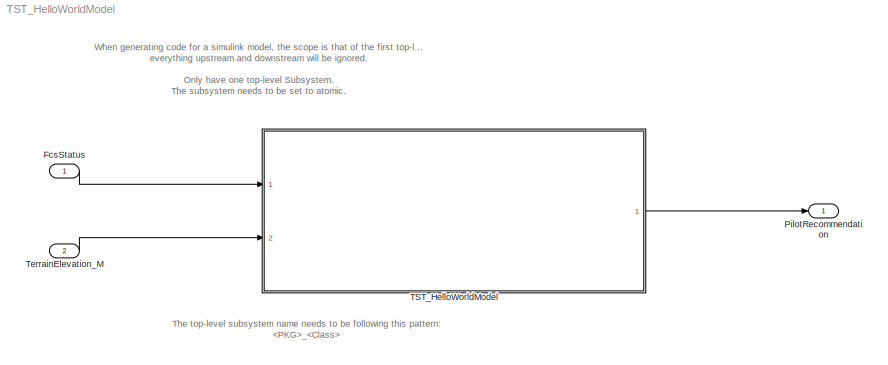
MODEL TST_HelloWorldModel
KIND model
BLOCK [Inport] FcsStatus
  IconDisplay = Port number
  OutDataTypeStr = Bus: FCS_FlightControlSystem_Status
  SID = 23
BLOCK [Outport] PilotRecommendation
  IconDisplay = Port number
  OutDataTypeStr = Enum: GBL_Definitions_EjectionCmd
  PortDimensions = 1
  SID = 25
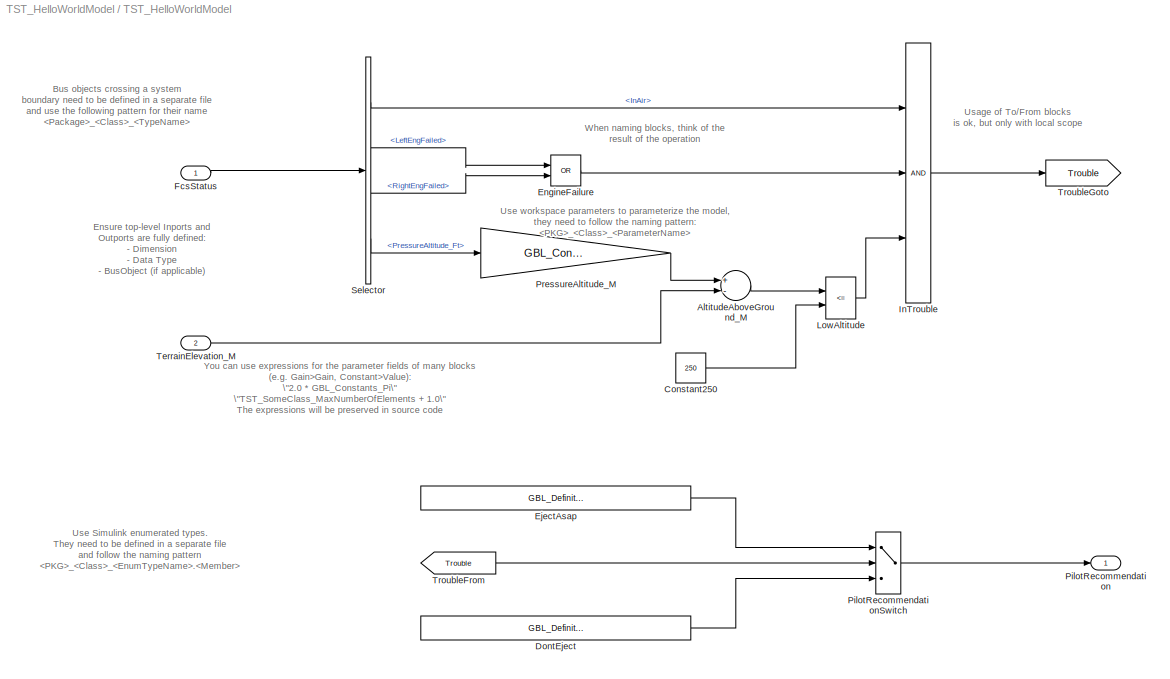
BLOCK [SubSystem] TST_HelloWorldModel
  Ports = [2, 1]
  RequestExecContextInheritance = off
  SID = 2
  TreatAsAtomicUnit = on
BLOCK [Sum] TST_HelloWorldModel/AltitudeAboveGround_M
  InputSameDT = off
  Inputs = +-
  OutDataTypeStr = Inherit: Inherit via internal rule
  Ports = [2, 1]
  SID = 13
  SaturateOnIntegerOverflow = off
BLOCK [Constant] TST_HelloWorldModel/Constant250
  OutDataTypeStr = double
  SID = 15
  Value = 250
BLOCK [Constant] TST_HelloWorldModel/DontEject
  OutDataTypeStr = Enum: GBL_Definitions_EjectionCmd
  SID = 22
  Value = GBL_Definitions_EjectionCmd.DontEject
BLOCK [Constant] TST_HelloWorldModel/EjectAsap
  OutDataTypeStr = Enum: GBL_Definitions_EjectionCmd
  SID = 21
  Value = GBL_Definitions_EjectionCmd.EjectAsap
BLOCK [Logic] TST_HelloWorldModel/EngineFailure
  AllPortsSameDT = off
  Operator = OR
  OutDataTypeStr = boolean
  Ports = [2, 1]
  SID = 11
BLOCK [Inport] TST_HelloWorldModel/FcsStatus
  IconDisplay = Port number
  OutDataTypeStr = Bus: FCS_FlightControlSystem_Status
  SID = 8
BLOCK [Logic] TST_HelloWorldModel/InTrouble
  AllPortsSameDT = off
  Inputs = 3
  OutDataTypeStr = boolean
  Ports = [3, 1]
  SID = 16
BLOCK [RelationalOperator] TST_HelloWorldModel/LowAltitude
  InputSameDT = off
  Operator = <=
  OutDataTypeStr = boolean
  Ports = [2, 1]
  SID = 14
BLOCK [Outport] TST_HelloWorldModel/PilotRecommendation
  IconDisplay = Port number
  OutDataTypeStr = Enum: GBL_Definitions_EjectionCmd
  PortDimensions = 1
  SID = 20
BLOCK [Switch] TST_HelloWorldModel/PilotRecommendationSwitch
  Criteria = u2 ~= 0
  InputSameDT = off
  OutDataTypeStr = Enum: GBL_Definitions_EjectionCmd
  SID = 19
  SaturateOnIntegerOverflow = off
BLOCK [Gain] TST_HelloWorldModel/PressureAltitude_M
  Gain = GBL_Constants_Feet2Meter
  OutDataTypeStr = Inherit: Inherit via internal rule
  ParamDataTypeStr = Inherit: Inherit via internal rule
  SID = 12
  SaturateOnIntegerOverflow = off
BLOCK [BusSelector] TST_HelloWorldModel/Selector
  OutputAsBus = off
  OutputSignals = InAir,LeftEngFailed,RightEngFailed,PressureAltitude_Ft
  Ports = [1, 4]
  SID = 10
BLOCK [Inport] TST_HelloWorldModel/TerrainElevation_M
  IconDisplay = Port number
  OutDataTypeStr = double
  Port = 2
  PortDimensions = 1
  SID = 9
BLOCK [From] TST_HelloWorldModel/TroubleFrom
  GotoTag = Trouble
  SID = 18
BLOCK [Goto] TST_HelloWorldModel/TroubleGoto
  GotoTag = Trouble
  SID = 17
BLOCK [Inport] TerrainElevation_M
  IconDisplay = Port number
  OutDataTypeStr = double
  Port = 2
  PortDimensions = 1
  SID = 24
ANNOTATION (root): The top-level subsystem name needs to be following this pattern:\n _
ANNOTATION (root): When generating code for a simulink model, the scope is that of the first top-level subsystem,\neverything upstream and downstream will be ignored.\n\nOnly have one top-level Subsystem.\nThe subsystem needs to be set to atomic.
ANNOTATION TST_HelloWorldModel: Bus objects crossing a system \nboundary need to be defined in a separate file\nand use the following pattern for their name\n _ _
ANNOTATION TST_HelloWorldModel: Ensure top-level Inports and\nOutports are fully defined:\n- Dimension\n- Data Type\n- BusObject (if applicable)
ANNOTATION TST_HelloWorldModel: Usage of To/From blocks\nis ok, but only with local scope
ANNOTATION TST_HelloWorldModel: Use Simulink enumerated types.\nThey need to be defined in a separate file\nand follow the naming pattern\n _ _ .
ANNOTATION TST_HelloWorldModel: Use workspace parameters to parameterize the model,\nthey need to follow the naming pattern:\n _ _
ANNOTATION TST_HelloWorldModel: When naming blocks, think of the \nresult of the operation
ANNOTATION TST_HelloWorldModel: You can use expressions for the parameter fields of many blocks\n(e.g. Gain>Gain, Constant>Value):\n\"2.0 * GBL_Constants_Pi\"\n\"TST_SomeClass_MaxNumberOfElements + 1.0\"\nThe expressions will be preserved in source code
LINE FcsStatus:1 -> TST_HelloWorldModel:1
LINE TST_HelloWorldModel/AltitudeAboveGround_M:1 -> TST_HelloWorldModel/LowAltitude:1
LINE TST_HelloWorldModel/Constant250:1 -> TST_HelloWorldModel/LowAltitude:2
LINE TST_HelloWorldModel/DontEject:1 -> TST_HelloWorldModel/PilotRecommendationSwitch:3
LINE TST_HelloWorldModel/EjectAsap:1 -> TST_HelloWorldModel/PilotRecommendationSwitch:1
LINE TST_HelloWorldModel/EngineFailure:1 -> TST_HelloWorldModel/InTrouble:2
LINE TST_HelloWorldModel/FcsStatus:1 -> TST_HelloWorldModel/Selector:1
LINE TST_HelloWorldModel/InTrouble:1 -> TST_HelloWorldModel/TroubleGoto:1
LINE TST_HelloWorldModel/LowAltitude:1 -> TST_HelloWorldModel/InTrouble:3
LINE TST_HelloWorldModel/PilotRecommendationSwitch:1 -> TST_HelloWorldModel/PilotRecommendation:1
LINE TST_HelloWorldModel/PressureAltitude_M:1 -> TST_HelloWorldModel/AltitudeAboveGround_M:1
LINE TST_HelloWorldModel/Selector:1 -> TST_HelloWorldModel/InTrouble:1
LINE TST_HelloWorldModel/Selector:2 -> TST_HelloWorldModel/EngineFailure:1
LINE TST_HelloWorldModel/Selector:3 -> TST_HelloWorldModel/EngineFailure:2
LINE TST_HelloWorldModel/Selector:4 -> TST_HelloWorldModel/PressureAltitude_M:1
LINE TST_HelloWorldModel/TerrainElevation_M:1 -> TST_HelloWorldModel/AltitudeAboveGround_M:2
LINE TST_HelloWorldModel/TroubleFrom:1 -> TST_HelloWorldModel/PilotRecommendationSwitch:2
LINE TST_HelloWorldModel:1 -> PilotRecommendation:1
LINE TerrainElevation_M:1 -> TST_HelloWorldModel:2
